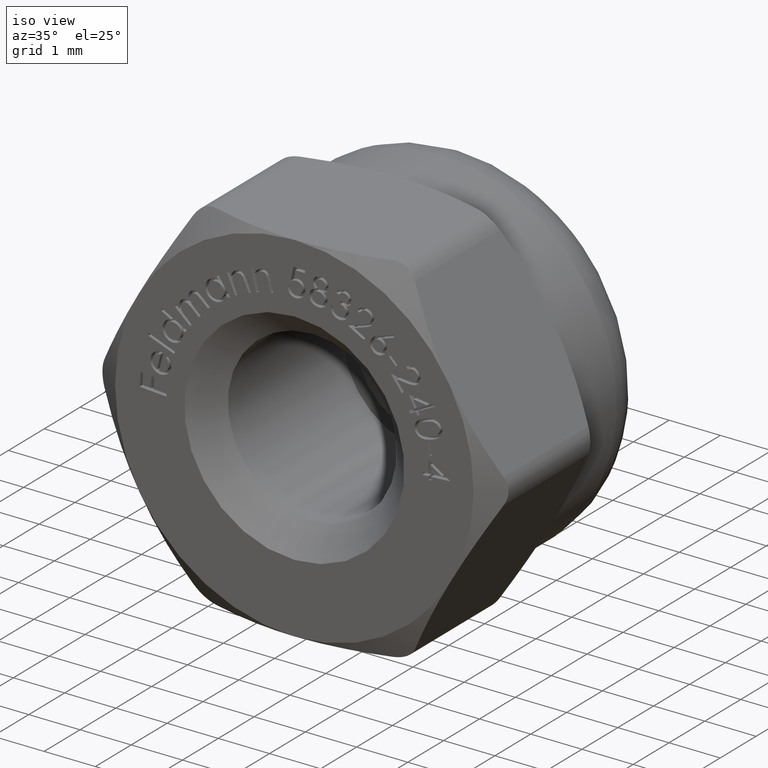
[diagram: clean part render]
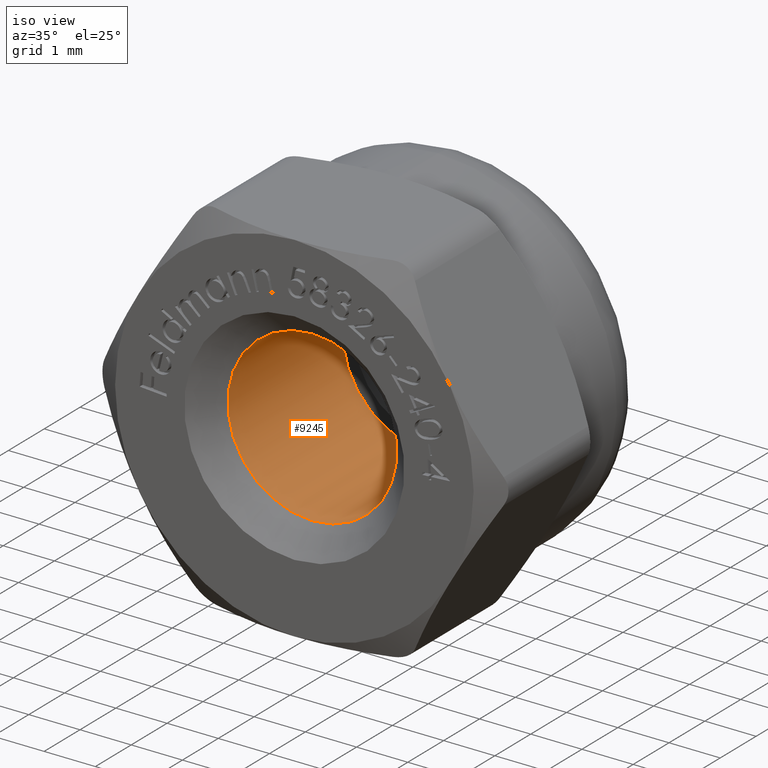
[diagram: same view with one face highlighted and labeled with its STEP entity id]
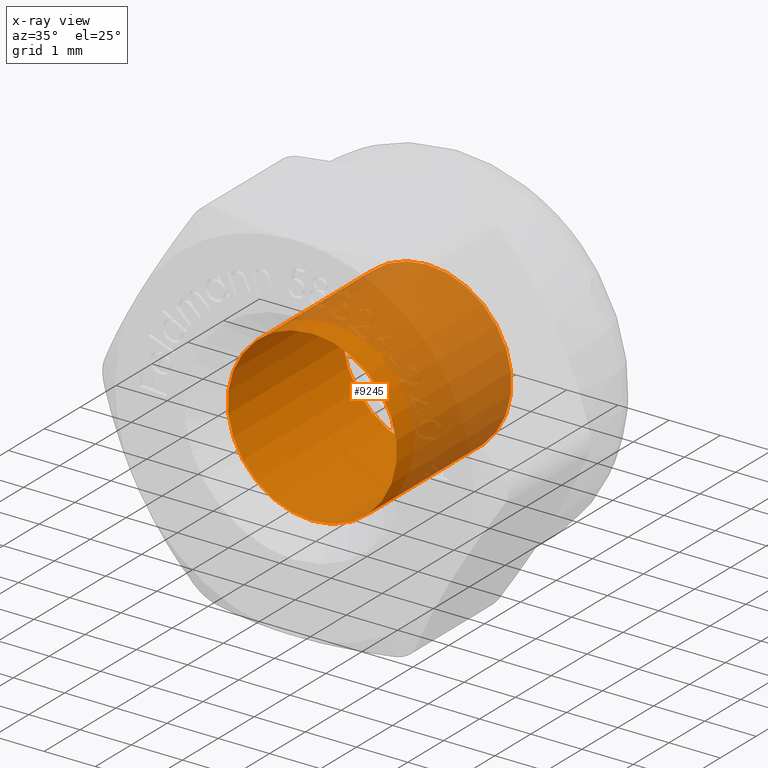
[diagram: x-ray of the same camera — body ghosted, the highlighted face saturated]
A machine part, iso view. The second image highlights one B-rep face of the part: STEP entity #9245.
The next image is the same camera in x-ray: the body ghosted, the highlighted face saturated — about 46% of this face is hidden behind the body in this view.
In plain terms, the highlighted cylindrical surface (bore or boss wall) has radius 1.65 mm, axis along (-0, -1, -0).
Its self-contained STEP definition (entity closure, byte-faithful):
#242 = CARTESIAN_POINT ( 'NONE',  ( 0.000000000000000000, -1.449999999999999956, 0.000000000000000000 ) ) ;
#614 = EDGE_LOOP ( 'NONE', ( #8396 ) ) ;
#2883 = EDGE_LOOP ( 'NONE', ( #4786 ) ) ;
#2925 = CIRCLE ( 'NONE', #10154, 1.649999999999998579 ) ;
#3922 = DIRECTION ( 'NONE',  ( -0.000000000000000000, -1.000000000000000000, -0.000000000000000000 ) ) ;
#4001 = VERTEX_POINT ( 'NONE', #5832 ) ;
#4098 = EDGE_CURVE ( 'NONE', #4001, #4001, #2925, .T. ) ;
#4364 = DIRECTION ( 'NONE',  ( 0.000000000000000000, 0.000000000000000000, 1.000000000000000000 ) ) ;
#4755 = CARTESIAN_POINT ( 'NONE',  ( 0.000000000000000000, -0.9500000000000016209, 1.649999999999997913 ) ) ;
#4786 = ORIENTED_EDGE ( 'NONE', *, *, #14949, .T. ) ;
#4949 = VERTEX_POINT ( 'NONE', #4755 ) ;
#5089 = DIRECTION ( 'NONE',  ( 0.000000000000000000, 0.000000000000000000, -1.000000000000000000 ) ) ;
#5832 = CARTESIAN_POINT ( 'NONE',  ( 0.000000000000000000, 2.250000000000000000, 1.649999999999998579 ) ) ;
#6290 = CYLINDRICAL_SURFACE ( 'NONE', #7870, 1.649999999999997913 ) ;
#7110 = CARTESIAN_POINT ( 'NONE',  ( 0.000000000000000000, 2.250000000000000000, 0.000000000000000000 ) ) ;
#7214 = DIRECTION ( 'NONE',  ( 0.000000000000000000, 0.000000000000000000, 1.000000000000000000 ) ) ;
#7870 = AXIS2_PLACEMENT_3D ( 'NONE', #242, #3922, #5089 ) ;
#7900 = AXIS2_PLACEMENT_3D ( 'NONE', #14079, #11639, #4364 ) ;
#8396 = ORIENTED_EDGE ( 'NONE', *, *, #4098, .T. ) ;
#9245 = ADVANCED_FACE ( 'NONE', ( #12918, #9880 ), #6290, .F. ) ;
#9880 = FACE_OUTER_BOUND ( 'NONE', #614, .T. ) ;
#10154 = AXIS2_PLACEMENT_3D ( 'NONE', #7110, #15637, #7214 ) ;
#11639 = DIRECTION ( 'NONE',  ( 0.000000000000000000, -1.000000000000000000, 0.000000000000000000 ) ) ;
#12918 = FACE_OUTER_BOUND ( 'NONE', #2883, .T. ) ;
#12936 = CIRCLE ( 'NONE', #7900, 1.649999999999997913 ) ;
#14079 = CARTESIAN_POINT ( 'NONE',  ( 0.000000000000000000, -0.9500000000000016209, 0.000000000000000000 ) ) ;
#14949 = EDGE_CURVE ( 'NONE', #4949, #4949, #12936, .T. ) ;
#15637 = DIRECTION ( 'NONE',  ( 0.000000000000000000, 1.000000000000000000, 0.000000000000000000 ) ) ;